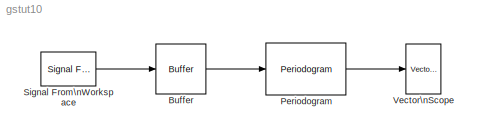
MODEL gstut10
KIND model
BLOCK [Reference] Buffer  REF=dspbuff3/Buffer
  N = 128
  Ports = [1, 1]
  SourceBlock = dspbuff3/Buffer
  SourceType = Buffer
  V = 48
  ic = 0
BLOCK [Reference] Periodogram  REF=dspspect3/Periodogram
  Ports = [1, 1]
  Rs = 50
  ShowPortLabels = on
  SourceBlock = dspspect3/Periodogram
  SourceType = Periodogram
  beta = 5
  fftsize = 256
  inheritFFT = on
  navg = 2
  winsamp = Periodic
  wintype = Hamming
BLOCK [Reference] Signal From\nWorkspace  REF=dspsrcs4/Signal From\nWorkspace
  OutputAfterFinalValue = Setting to zero
  Ports = [0, 1]
  ShowPortLabels = on
  SourceBlock = dspsrcs4/Signal From\nWorkspace
  SourceType = Signal From Workspace
  Ts = 1/8000
  X = mtlb
  nsamps = 80
BLOCK [Reference] Vector\nScope  REF=dspsnks4/Vector\nScope
  AxisGrid = on
  AxisLegend = off
  AxisProperties = off
  AxisZoom = off
  DisplayProperties = off
  Domain = Frequency
  FigPos = get(0,'defaultfigureposition')
  FrameNumber = on
  HorizSpan = 1
  InheritXIncr = on
  LineProperties = off
  Memory = off
  OpenScopeAtSimStart = on
  OpenScopeImmediately = off
  Ports = [1]
  ScopeProperties = on
  ShowPortLabels = off
  SourceBlock = dspsnks4/Vector\nScope
  SourceType = Vector Scope
  XIncr = 1
  XLabel = Time
  XRange = [0...Fs/2]
  XUnits = Hertz
  YLabel = Magnitude, dB
  YMax = 10
  YMin = -10
  YUnits = dB
LINE Buffer:1 -> Periodogram:1
LINE Periodogram:1 -> Vector\nScope:1
LINE Signal From\nWorkspace:1 -> Buffer:1
